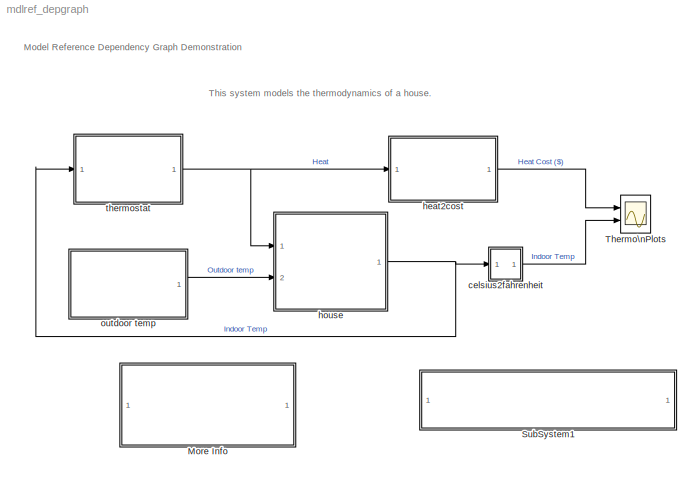
MODEL mdlref_depgraph
KIND model
CONFIG PreLoadFcn = thermdat
BLOCK [SubSystem] More Info
  MaskDisplay = disp('Double click here \\nfor a step-by-step\\ntutorial on this model')
  MaskIconFrame = on
  MaskIconOpaque = on
  MaskIconRotate = none
  MaskIconUnits = autoscale
  MinAlgLoopOccurrences = off
  OpenFcn = mFileName = 'mdlref_depgraph_demo'; htmlName      = 'mdlref_depgraph_demo.html';fullPath      = which(mFileName); dirPath       = fileparts(fullPath);fullHTMLPath  = fullfile(dirPath,htmlName);web(fullHTMLPath,'-helpbrowser')
  Ports = []
  PropExecContextAcrossSSBoundary = on
  RTWSystemCode = Auto
  TreatAsAtomicUnit = off
BLOCK [SubSystem] SubSystem1
  MaskDisplay = disp('Double click here to view \\n Model Reference dependency graph');
  MaskIconFrame = on
  MaskIconOpaque = on
  MaskIconRotate = none
  MaskIconUnits = autoscale
  MinAlgLoopOccurrences = off
  OpenFcn = mdlName= get_param(bdroot(gcbh),'name');\nview_mdlrefs(mdlName);
  Ports = []
  PropExecContextAcrossSSBoundary = on
  RTWSystemCode = Auto
  TreatAsAtomicUnit = off
BLOCK [Scope] Thermo\nPlots
  DataFormat = StructureWithTime
  NumInputPorts = 2
  Ports = [2]
  SaveToWorkspace = on
  TickLabels = on
  TimeRange = 200000
  YMax = 40~80
  YMin = 0~60
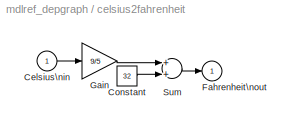
BLOCK [SubSystem] celsius2fahrenheit
  MaskDescription = Conversion from degrees Celsius to degrees Fahrenheit.\n\nF=9/5*C+32
  MaskDisplay = disp('C2F')
  MaskHelp = This block converts from degrees Celsius to degrees Fahrenheit.
  MaskIconFrame = on
  MaskIconOpaque = on
  MaskIconRotate = none
  MaskIconUnits = autoscale
  MaskType = CelsiusToFahrenheit
  MinAlgLoopOccurrences = off
  Ports = [1, 1]
  PropExecContextAcrossSSBoundary = on
  RTWSystemCode = Auto
  TreatAsAtomicUnit = off
BLOCK [Inport] celsius2fahrenheit/Celsius\nin
  IconDisplay = Port number
  LatchInput = off
  Port = 1
BLOCK [Constant] celsius2fahrenheit/Constant
  OutDataTypeMode = Inherit via back propagation
  Value = 32
BLOCK [Outport] celsius2fahrenheit/Fahrenheit\nout
  BusOutputAsStruct = off
  IconDisplay = Port number
  InitialOutput = 0
BLOCK [Gain] celsius2fahrenheit/Gain
  Gain = 9/5
BLOCK [Sum] celsius2fahrenheit/Sum
  Ports = [2, 1]
BLOCK [ModelReference] heat2cost
  CopyOfModelName = mdlref_heat2cost
  DefaultDataLogging = off
  ModelName = mdlref_heat2cost
  ModelReferenceVersion = 1.7
  Ports = [1, 1]
BLOCK [ModelReference] house
  CopyOfModelName = mdlref_house
  DefaultDataLogging = off
  ModelName = mdlref_house
  ModelReferenceVersion = 1.7
  Ports = [2, 1]
BLOCK [ModelReference] outdoor temp
  CopyOfModelName = mdlref_outdoor_temp
  DefaultDataLogging = off
  ModelName = mdlref_outdoor_temp
  ModelReferenceVersion = 1.13
  Ports = [0, 1]
BLOCK [ModelReference] thermostat
  CopyOfModelName = mdlref_heater
  DefaultDataLogging = off
  ModelName = mdlref_heater
  ModelReferenceVersion = 1.17
  Ports = [1, 1]
ANNOTATION (root): Model Reference Dependency Graph Demonstration
ANNOTATION (root): This system models the thermodynamics of a house.
LINE celsius2fahrenheit/Celsius\nin:1 -> celsius2fahrenheit/Gain:1
LINE celsius2fahrenheit/Constant:1 -> celsius2fahrenheit/Sum:2
LINE celsius2fahrenheit/Gain:1 -> celsius2fahrenheit/Sum:1
LINE celsius2fahrenheit/Sum:1 -> celsius2fahrenheit/Fahrenheit\nout:1
LINE celsius2fahrenheit:1 -> Thermo\nPlots:2
LINE heat2cost:1 -> Thermo\nPlots:1
NET house:1 -> celsius2fahrenheit:1, thermostat:1
LINE outdoor temp:1 -> house:2
NET thermostat:1 -> heat2cost:1, house:1
note: NET lines group one-source signal fan-out (src -> all destinations, sorted); 1:1 wires keep LINE
